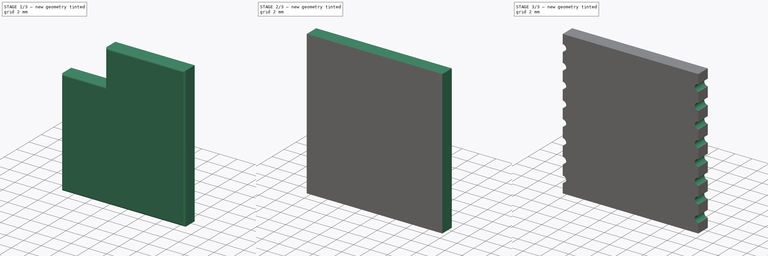
[diagram: build sequence overview — one tinted view per stage of 3, left to right]
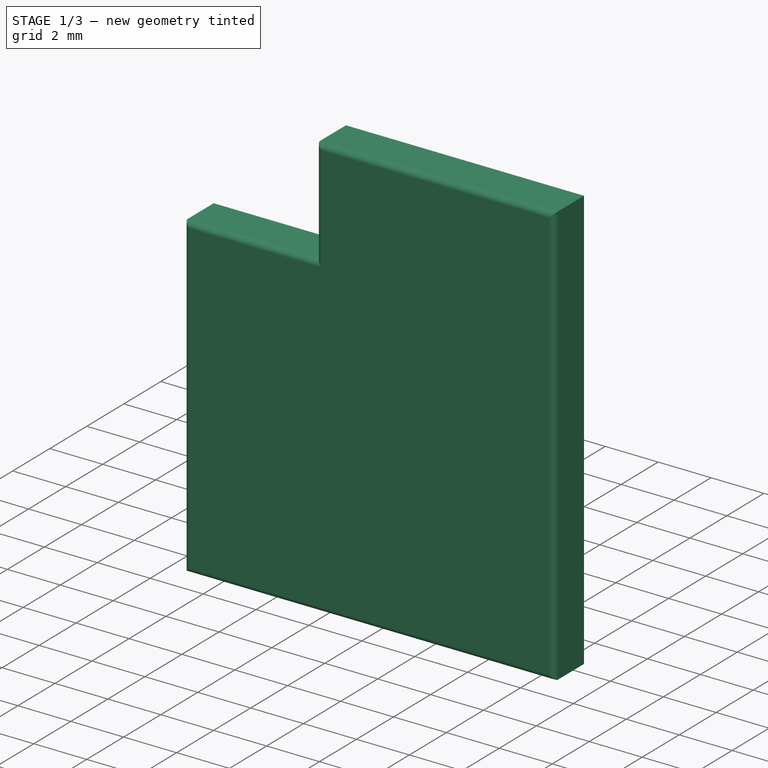
[diagram: stage 1 of 3 — iso view after this stage's code; geometry added in this stage tinted green]
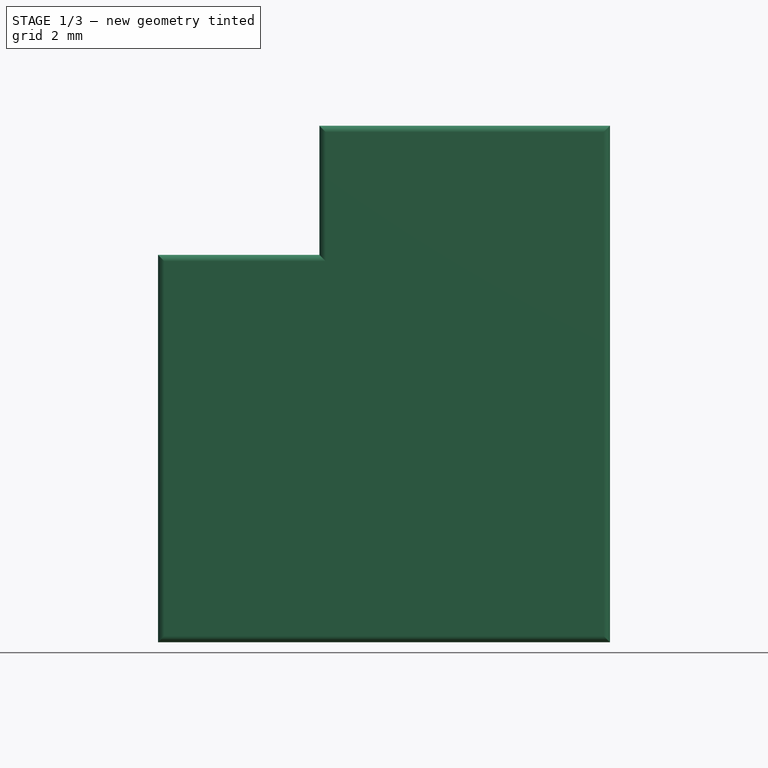
[diagram: stage 1 of 3 — front view after this stage's code; geometry added in this stage tinted green]
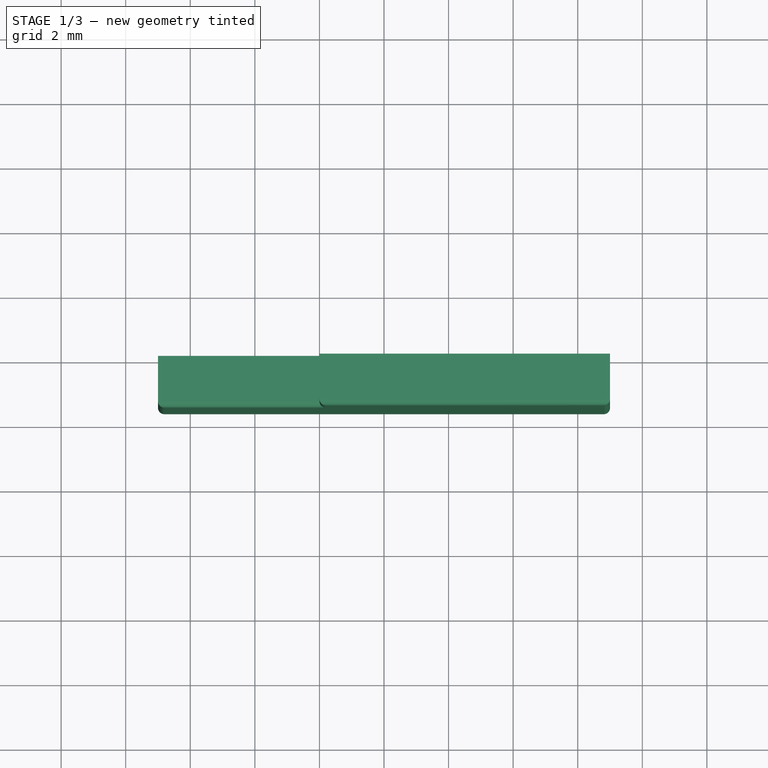
[diagram: stage 1 of 3 — top view after this stage's code; geometry added in this stage tinted green]
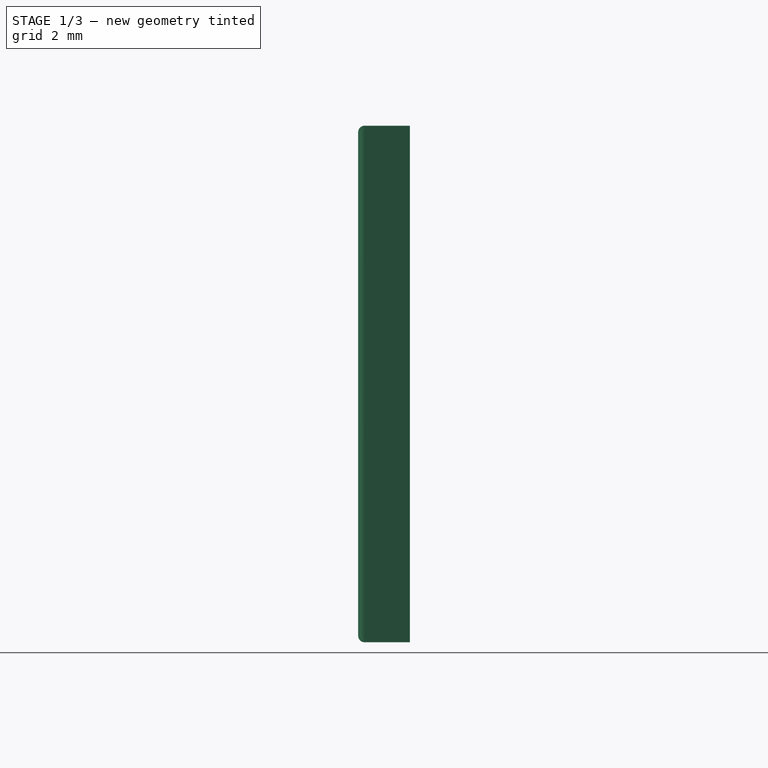
[diagram: stage 1 of 3 — right view after this stage's code; geometry added in this stage tinted green]
FCSTD DOCUMENT  (FreeCAD 2024.2R37179 (Git))
Label: ra02
License: All rights reserved
LicenseURL: https://en.wikipedia.org/wiki/All_rights_reserved
objects: App::LinkElement×15, Sketcher::SketchObject×5, PartDesign::Pad×4, PartDesign::Body×4, PartDesign::LinearPattern×1, PartDesign::Mirrored×1, PartDesign::Pocket×1, PartDesign::MultiTransform×1, PartDesign::Fillet×1, App::Part×1
note: 24 computed .brp shape members not serialized (recipe doc carries the construction recipe); baked Part::Feature solids carry a one-line shape summary decoded from their .brp

FEATURE [PartDesign::Body] Body001  label="Pin1"
  Group = -> [Sketch003,Pad001,Sketch004,Pad002]
  Origin = -> Origin003
  Placement = pos=(-8,-1.6,7) rot=(0,0,1;0rad)
  Tip = -> Pad002
FEATURE [App::LinkElement] Array_i1
  LinkPlacement = pos=(-8,-1.6,5) rot=(0,0,1;0rad)
  LinkedObject = -> Body001
  Placement = pos=(-8,-1.6,5) rot=(0,0,1;0rad)
FEATURE [App::LinkElement] Array_i2
  LinkPlacement = pos=(-8,-1.6,3) rot=(0,0,1;0rad)
  LinkedObject = -> Body001
  Placement = pos=(-8,-1.6,3) rot=(0,0,1;0rad)
FEATURE [App::LinkElement] Array_i3
  LinkPlacement = pos=(-8,-1.6,1) rot=(0,0,1;0rad)
  LinkedObject = -> Body001
  Placement = pos=(-8,-1.6,1) rot=(0,0,1;0rad)
FEATURE [App::LinkElement] Array_i4
  LinkPlacement = pos=(-8,-1.6,-1) rot=(0,0,1;0rad)
  LinkedObject = -> Body001
  Placement = pos=(-8,-1.6,-1) rot=(0,0,1;0rad)
FEATURE [App::LinkElement] Array_i5
  LinkPlacement = pos=(-8,-1.6,-3) rot=(0,0,1;0rad)
  LinkedObject = -> Body001
  Placement = pos=(-8,-1.6,-3) rot=(0,0,1;0rad)
FEATURE [App::LinkElement] Array_i6
  LinkPlacement = pos=(-8,-1.6,-5) rot=(0,0,1;0rad)
  LinkedObject = -> Body001
  Placement = pos=(-8,-1.6,-5) rot=(0,0,1;0rad)
FEATURE [App::LinkElement] Array_i7
  LinkPlacement = pos=(-8,-1.6,-7) rot=(0,0,1;0rad)
  LinkedObject = -> Body001
  Placement = pos=(-8,-1.6,-7) rot=(0,0,1;0rad)
FEATURE [App::LinkElement] Array_i8
  LinkPlacement = pos=(8,-1.6,7) rot=(0,1,0;3.14159rad)
  LinkedObject = -> Body001
  Placement = pos=(8,-1.6,7) rot=(0,1,0;3.14159rad)
FEATURE [App::LinkElement] Array_i9
  LinkPlacement = pos=(8,-1.6,5) rot=(0,1,0;3.14159rad)
  LinkedObject = -> Body001
  Placement = pos=(8,-1.6,5) rot=(0,1,0;3.14159rad)
FEATURE [App::LinkElement] Array_i10
  LinkPlacement = pos=(8,-1.6,3) rot=(0,1,0;3.14159rad)
  LinkedObject = -> Body001
  Placement = pos=(8,-1.6,3) rot=(0,1,0;3.14159rad)
FEATURE [App::LinkElement] Array_i11
  LinkPlacement = pos=(8,-1.6,1) rot=(0,1,0;3.14159rad)
  LinkedObject = -> Body001
  Placement = pos=(8,-1.6,1) rot=(0,1,0;3.14159rad)
FEATURE [App::LinkElement] Array_i12
  LinkPlacement = pos=(8,-1.6,-1) rot=(0,1,0;3.14159rad)
  LinkedObject = -> Body001
  Placement = pos=(8,-1.6,-1) rot=(0,1,0;3.14159rad)
FEATURE [App::LinkElement] Array_i13
  LinkPlacement = pos=(8,-1.6,-3) rot=(0,1,0;3.14159rad)
  LinkedObject = -> Body001
  Placement = pos=(8,-1.6,-3) rot=(0,1,0;3.14159rad)
FEATURE [App::LinkElement] Array_i14
  LinkPlacement = pos=(8,-1.6,-5) rot=(0,1,0;3.14159rad)
  LinkedObject = -> Body001
  Placement = pos=(8,-1.6,-5) rot=(0,1,0;3.14159rad)
FEATURE [App::LinkElement] Array_i15
  LinkPlacement = pos=(8,-1.6,-7) rot=(0,1,0;3.14159rad)
  LinkedObject = -> Body001
  Placement = pos=(8,-1.6,-7) rot=(0,1,0;3.14159rad)
FEATURE [PartDesign::Body] Body002  label="Body"
  Origin = -> Origin004
FEATURE [Sketcher::SketchObject] Sketch005
  AttachmentSupport = -> [XZ_Plane005]
  FullyConstrained = true
  MapMode = 5
  Placement = pos=(0,0,0) rot=(1,0,0;1.5708rad)
  sketch-geometry (6):
    g0: LineSegment StartX=-7 StartY=-8 StartZ=0 EndX=-7 EndY=4 EndZ=0
    g1: LineSegment StartX=-7 StartY=4 StartZ=0 EndX=-2 EndY=4 EndZ=0
    g2: LineSegment StartX=-2 StartY=4 StartZ=0 EndX=-2 EndY=8 EndZ=0
    g3: LineSegment StartX=-2 StartY=8 StartZ=0 EndX=7 EndY=8 EndZ=0
    g4: LineSegment StartX=7 StartY=8 StartZ=0 EndX=7 EndY=-8 EndZ=0
    g5: LineSegment StartX=7 StartY=-8 StartZ=0 EndX=-7 EndY=-8 EndZ=0
  constraints (16):
    c: Vertical(g0)
    c: Coincident(g0,g1)
    c: Horizontal(g1)
    c: Coincident(g1,g2)
    c: Vertical(g2)
    c: Coincident(g2,g3)
    c: Horizontal(g3)
    c: Coincident(g3,g4)
    c: Coincident(g4,g5)
    c: Coincident(g5,g0)
    c: Symmetric(g3,g4,g-1)
    c: Symmetric(g0,g4,g-2)
    c: DistanceX(g5,g5) = 14
    c: DistanceY(g4,g4) = 16
    c: DistanceX(g1,g1) = 5
    c: Distance(g2,g2) = 4
FEATURE [PartDesign::Pad] Pad003
  Direction = (0,-1,2e-16)
  Length = 1.6
  Length2 = 10
  Placement = pos=(0,0,0) rot=(1,0,0;1.5708rad)
  Profile = -> Sketch005
  ReferenceAxis = -> Sketch005 [N_Axis]
  Refine = true
  Suppressed = false
  Type = 0
FEATURE [PartDesign::Fillet] Fillet
  Base = -> Pad003 [Face8]
  BaseFeature = -> Pad003
  Placement = pos=(0,0,0) rot=(1,0,0;1.5708rad)
  Radius = 0.2
  Refine = true
  SupportTransform = false
  Suppressed = false
  UseAllEdges = false
FEATURE [PartDesign::Body] Body003  label="Shell"
  Group = -> [Sketch005,Pad003,Fillet]
  Origin = -> Origin005
  Placement = pos=(0,-1.6,0) rot=(0,0,1;0rad)
  Tip = -> Fillet
FEATURE [App::Part] Part  label="ra-02"
  Group = -> [Body,Body001,Body002,Body003,Array_i3,Array_i1,Array_i2,Array_i4,Array_i5,Array_i6,Array_i7,Array_i8,Array_i9,Array_i10,Array_i11,Array_i12,Array_i13,Array_i14,Array_i15]
  Origin = -> Origin001
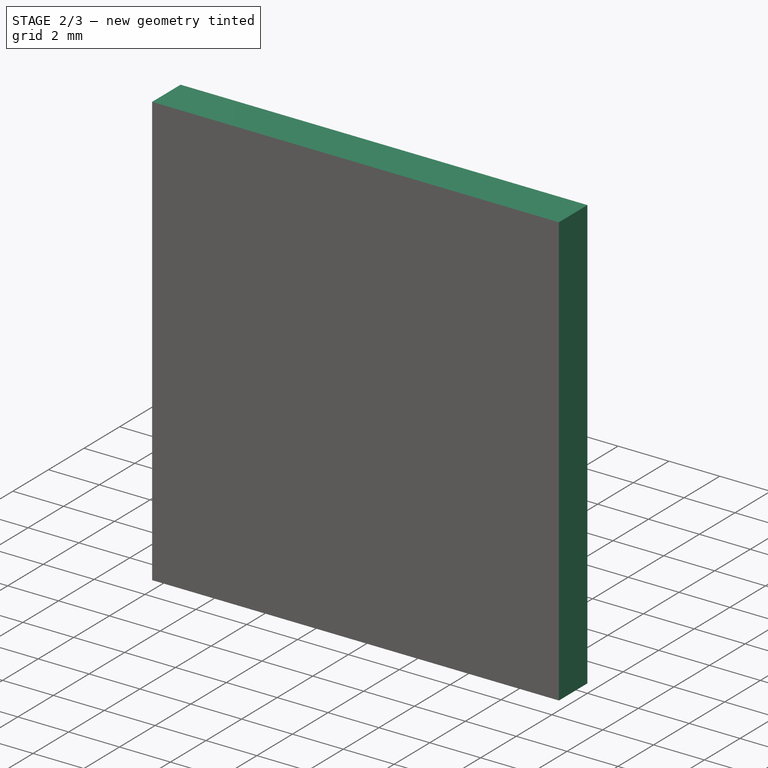
[diagram: stage 2 of 3 — iso view after this stage's code; geometry added in this stage tinted green]
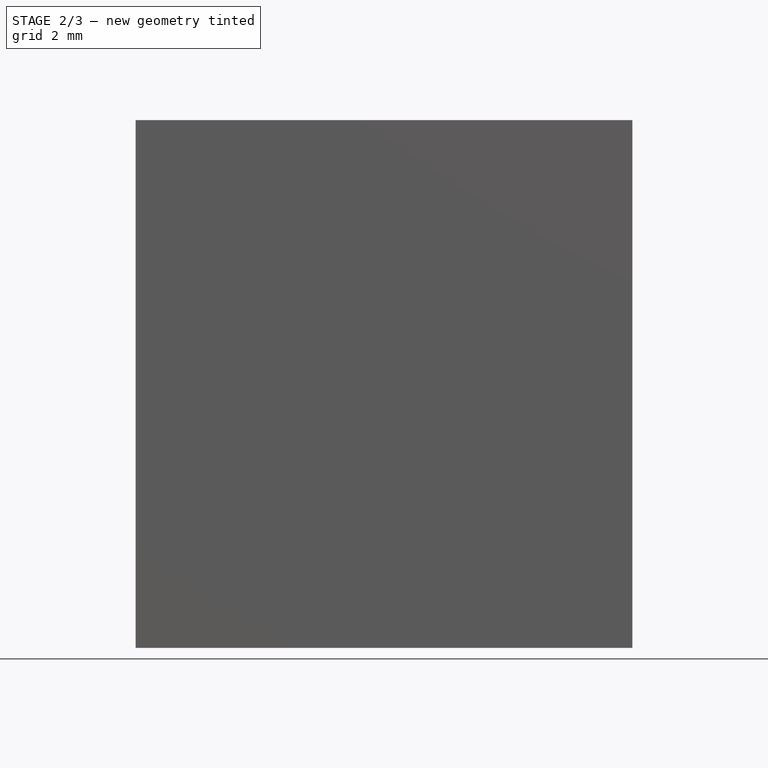
[diagram: stage 2 of 3 — front view after this stage's code; geometry added in this stage tinted green]
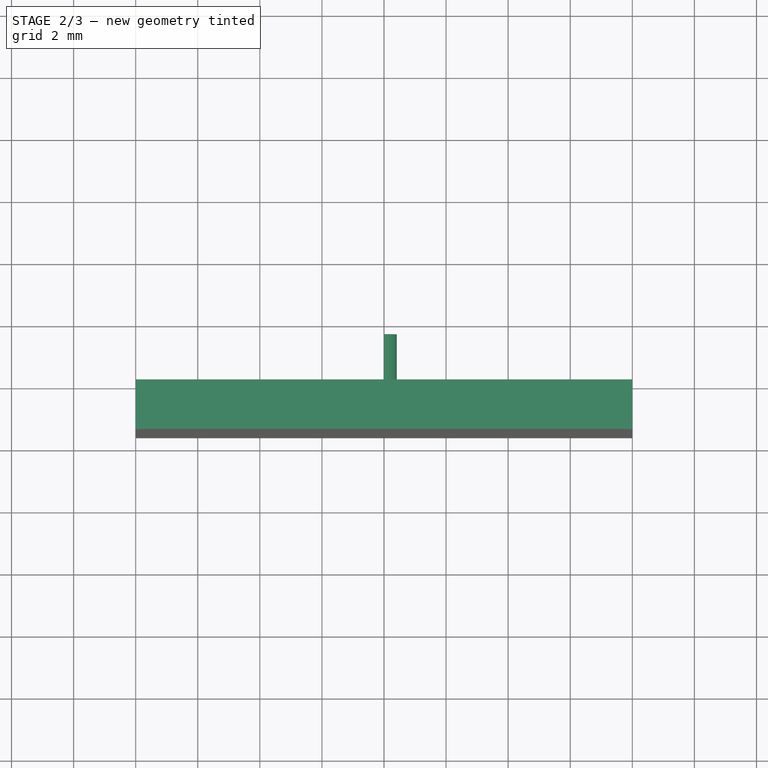
[diagram: stage 2 of 3 — top view after this stage's code; geometry added in this stage tinted green]
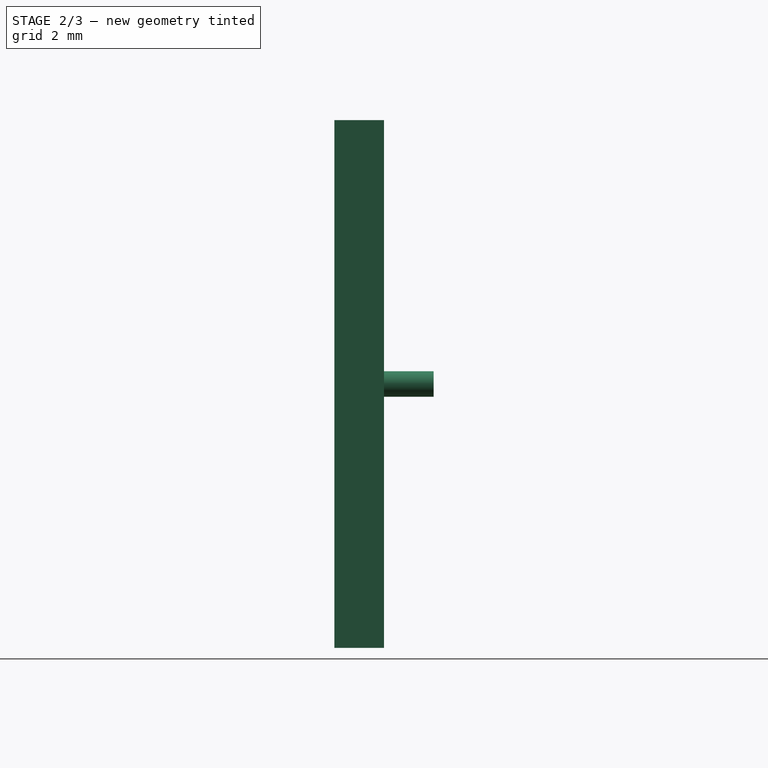
[diagram: stage 2 of 3 — right view after this stage's code; geometry added in this stage tinted green]
FEATURE [Sketcher::SketchObject] Sketch
  AttachmentSupport = -> [XZ_Plane002]
  FullyConstrained = true
  MapMode = 5
  Placement = pos=(0,0,0) rot=(1,0,0;1.5708rad)
  sketch-geometry (5):
    g0: LineSegment StartX=8 StartY=-8.5 StartZ=0 EndX=8 EndY=8.5 EndZ=0
    g1: LineSegment StartX=8 StartY=8.5 StartZ=0 EndX=-8 EndY=8.5 EndZ=0
    g2: LineSegment StartX=-8 StartY=8.5 StartZ=0 EndX=-8 EndY=-8.5 EndZ=0
    g3: LineSegment StartX=-8 StartY=-8.5 StartZ=0 EndX=8 EndY=-8.5 EndZ=0
    g4: GeomPoint X=0 Y=0 Z=0
  constraints (12):
    c: Coincident(g0,g1)
    c: Coincident(g1,g2)
    c: Coincident(g2,g3)
    c: Coincident(g3,g0)
    c: Vertical(g0)
    c: Vertical(g2)
    c: Horizontal(g1)
    c: Horizontal(g3)
    c: Symmetric(g2,g0,g4)
    c: DistanceX(g3,g3) = 16
    c: DistanceY(g2,g2) = 17
    c: Coincident(g4,g-1)
FEATURE [PartDesign::Pad] Pad
  Direction = (0,-1,2e-16)
  Length = 1.6
  Length2 = 10
  Placement = pos=(0,0,0) rot=(1,0,0;1.5708rad)
  Profile = -> Sketch
  ReferenceAxis = -> Sketch [N_Axis]
  Refine = true
  Suppressed = false
  Type = 0
FEATURE [PartDesign::Body] Body  label="Base"
  Group = -> [Sketch,Pad,Sketch002,Pocket,MultiTransform,LinearPattern,Mirrored]
  Origin = -> Origin002
  Tip = -> MultiTransform
FEATURE [Sketcher::SketchObject] Sketch003
  AttachmentSupport = -> [XZ_Plane003]
  FullyConstrained = true
  MapMode = 5
  Placement = pos=(0,0,0) rot=(1,0,0;1.5708rad)
  sketch-geometry (6):
    g0: LineSegment StartX=-1e-16 StartY=-0.5 StartZ=0 EndX=0.5 EndY=-0.5 EndZ=0
    g1: LineSegment StartX=0.5 StartY=-0.5 StartZ=0 EndX=0.5 EndY=0.5 EndZ=0
    g2: LineSegment StartX=0.5 StartY=0.5 StartZ=0 EndX=1e-16 EndY=0.5 EndZ=0
    g3: LineSegment StartX=1e-16 StartY=0.5 StartZ=0 EndX=1e-16 EndY=0.375 EndZ=0
    g4: ArcOfCircle CenterX=0 CenterY=0 CenterZ=0 NormalX=0 NormalY=0 NormalZ=1 AngleXU=0 Radius=0.375 StartAngle=4.71239 EndAngle=7.85398
    g5: LineSegment StartX=-1e-16 StartY=-0.375 StartZ=0 EndX=-1e-16 EndY=-0.5 EndZ=0
  constraints (17):
    c: Coincident(g0,g1)
    c: Coincident(g1,g2)
    c: Coincident(g2,g3)
    c: Coincident(g5,g0)
    c: Horizontal(g0)
    c: Horizontal(g2)
    c: Vertical(g1)
    c: Vertical(g3)
    c: Distance(g1,g5) = 0.5
    c: Distance(g0,g2) = 1
    c: Symmetric(g2,g0,g-1)
    c: Coincident(g4,g-1)
    c: Radius(g4) = 0.375
    c: Coincident(g3,g4)
    c: Coincident(g5,g4)
    c: Vertical(g5)
    c: PointOnObject(g2,g-2)
FEATURE [PartDesign::Pad] Pad001
  Direction = (0,-1,2e-16)
  Length = 0.035
  Length2 = 10
  Placement = pos=(0,0,0) rot=(1,0,0;1.5708rad)
  Profile = -> Sketch003
  ReferenceAxis = -> Sketch003 [N_Axis]
  Refine = true
  Suppressed = false
  Type = 0
FEATURE [Sketcher::SketchObject] Sketch004
  AttachmentSupport = -> [Pad001]
  ExternalGeometry = -> [Pad001]
  FullyConstrained = true
  MapMode = 5
  Placement = pos=(0,0,0) rot=(-1,0,0;1.5708rad)
  sketch-geometry (4):
    g0: ArcOfCircle CenterX=0 CenterY=0 CenterZ=0 NormalX=0 NormalY=0 NormalZ=1 AngleXU=0 Radius=0.375 StartAngle=4.71239 EndAngle=7.85398
    g1: ArcOfCircle CenterX=0 CenterY=0 CenterZ=0 NormalX=0 NormalY=0 NormalZ=1 AngleXU=0 Radius=0.41 StartAngle=4.71239 EndAngle=7.85398
    g2: LineSegment StartX=1e-16 StartY=0.41 StartZ=0 EndX=-2e-16 EndY=0.375 EndZ=0
    g3: LineSegment StartX=-1e-16 StartY=-0.375 StartZ=0 EndX=-1e-16 EndY=-0.41 EndZ=0
  constraints (11):
    c: PointOnObject(g0,g-2)
    c: Coincident(g1,g0)
    c: PointOnObject(g1,g-2)
    c: Coincident(g1,g2)
    c: Coincident(g0,g3)
    c: PointOnObject(g3,g-2)
    c: Distance(g0,g1) = 0.035
    c: Coincident(g3,g1)
    c: Coincident(g0,g2)
    c: Coincident(g0,g-1)
    c: Coincident(g0,g-3)
FEATURE [PartDesign::Pad] Pad002
  BaseFeature = -> Pad001
  Direction = (0,1,2e-16)
  Length = 1.6
  Length2 = 10
  Placement = pos=(0,0,0) rot=(1,0,0;1.5708rad)
  Profile = -> Sketch004
  ReferenceAxis = -> Sketch004 [N_Axis]
  Refine = true
  Suppressed = false
  Type = 0
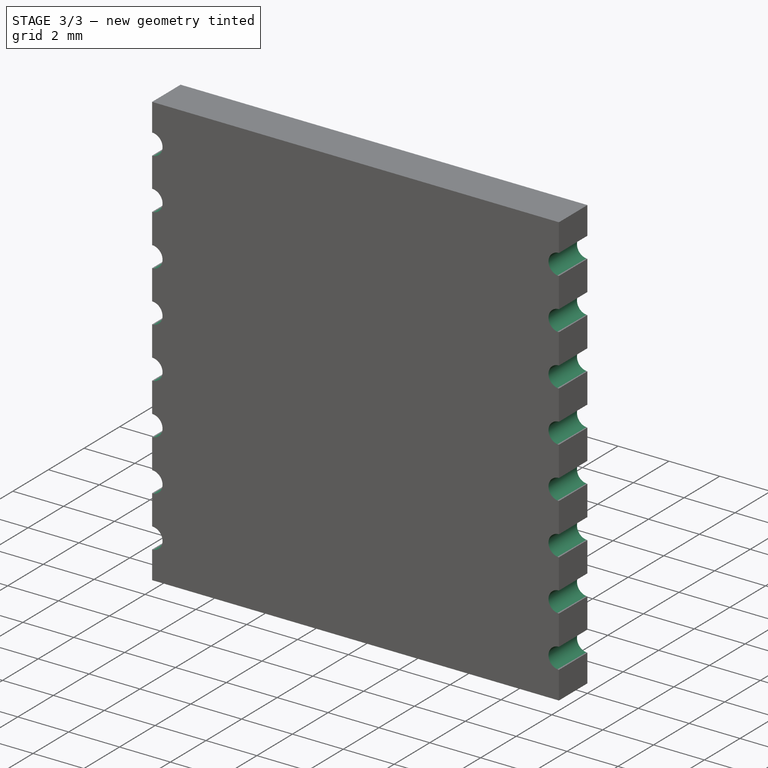
[diagram: stage 3 of 3 — iso view after this stage's code; geometry added in this stage tinted green]
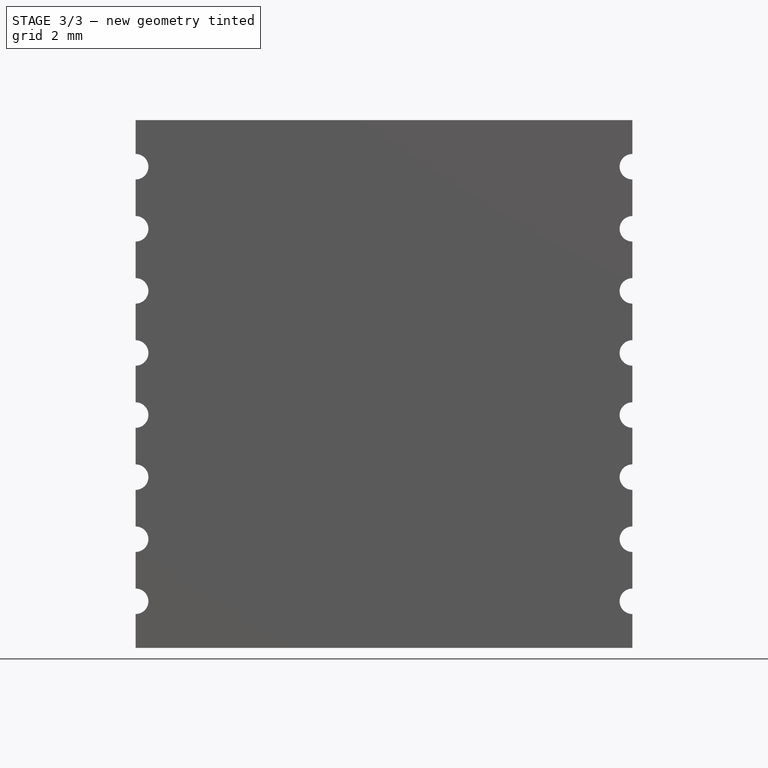
[diagram: stage 3 of 3 — front view after this stage's code; geometry added in this stage tinted green]
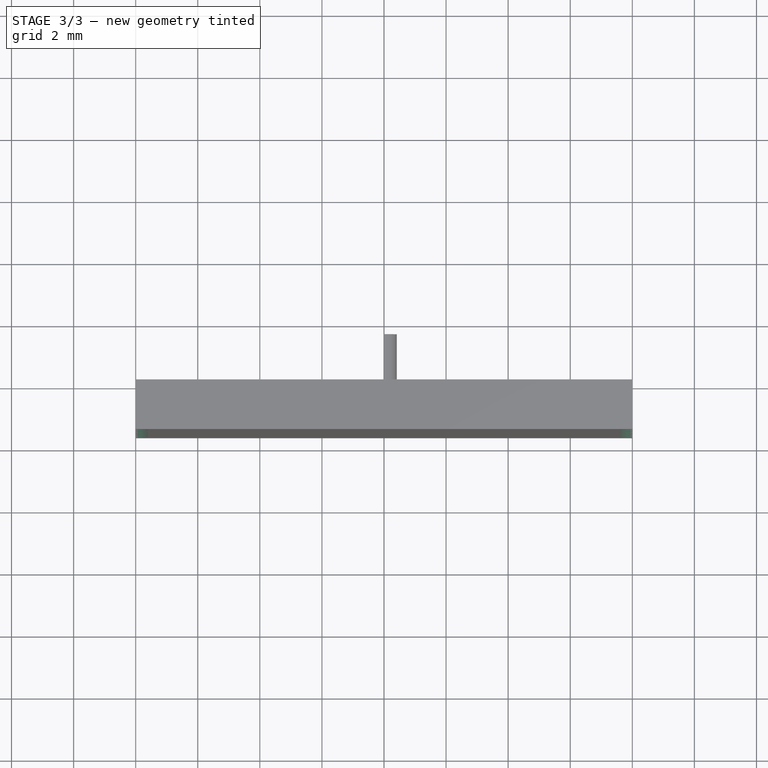
[diagram: stage 3 of 3 — top view after this stage's code; geometry added in this stage tinted green]
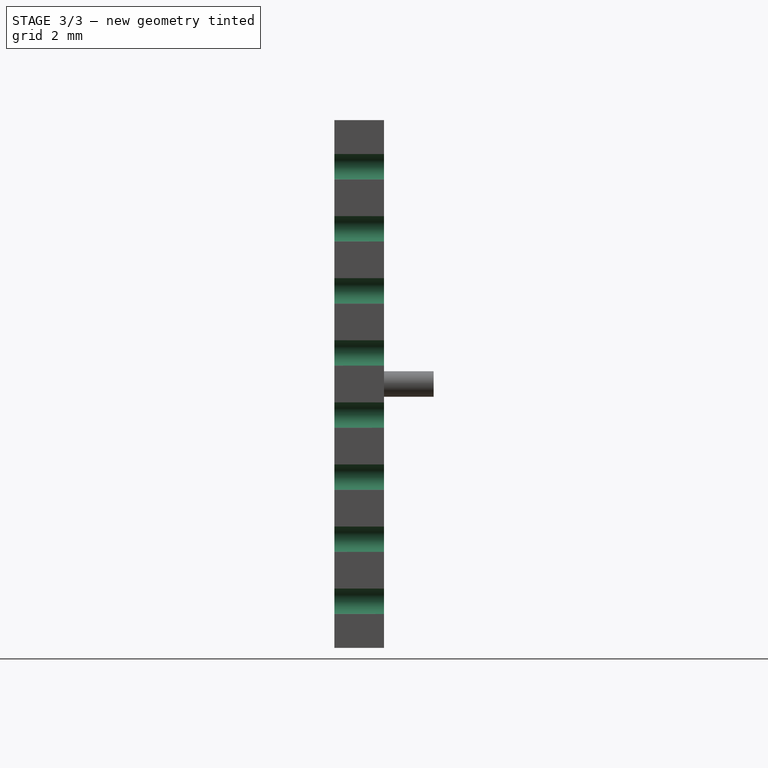
[diagram: stage 3 of 3 — right view after this stage's code; geometry added in this stage tinted green]
FEATURE [PartDesign::LinearPattern] LinearPattern
  Direction = -> Z_Axis002
  Length = 14
  Mode = 1
  Occurrences = 8
  Offset = 2
  Placement = pos=(0,0,0) rot=(1,0,0;1.5708rad)
  Refine = true
  Reversed = true
  Suppressed = false
FEATURE [PartDesign::Mirrored] Mirrored
  MirrorPlane = -> YZ_Plane002
  Placement = pos=(0,0,0) rot=(1,0,0;1.5708rad)
  Refine = true
  Suppressed = false
FEATURE [Sketcher::SketchObject] Sketch002
  FullyConstrained = false
  MapMode = 5
  Placement = pos=(0,-1.6,1e-15) rot=(1,0,0;1.5708rad)
  sketch-geometry (1):
    g0: Circle CenterX=-8 CenterY=7 CenterZ=0 NormalX=0 NormalY=0 NormalZ=1 AngleXU=0 Radius=0.41
  constraints (1):
    c: Diameter(g0) = 0.82
FEATURE [PartDesign::Pocket] Pocket
  BaseFeature = -> Pad
  Direction = (0,1,-2e-16)
  Length = 5
  Length2 = 5
  Midplane = true
  Placement = pos=(0,0,0) rot=(1,0,0;1.5708rad)
  Profile = -> Sketch002
  ReferenceAxis = -> Sketch002 [N_Axis]
  Refine = true
  Suppressed = false
  Type = 1
FEATURE [PartDesign::MultiTransform] MultiTransform
  BaseFeature = -> Pocket
  Originals = -> [Pocket]
  Placement = pos=(0,0,0) rot=(1,0,0;1.5708rad)
  Refine = true
  Suppressed = false
  Transformations = -> [LinearPattern,Mirrored]
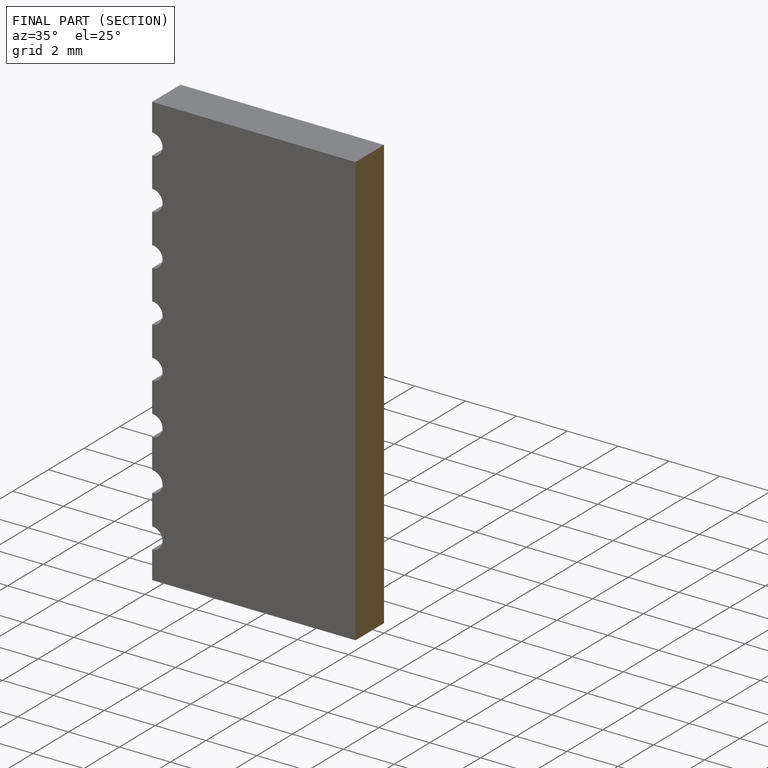
[diagram: finished part — half-section view (interior)]
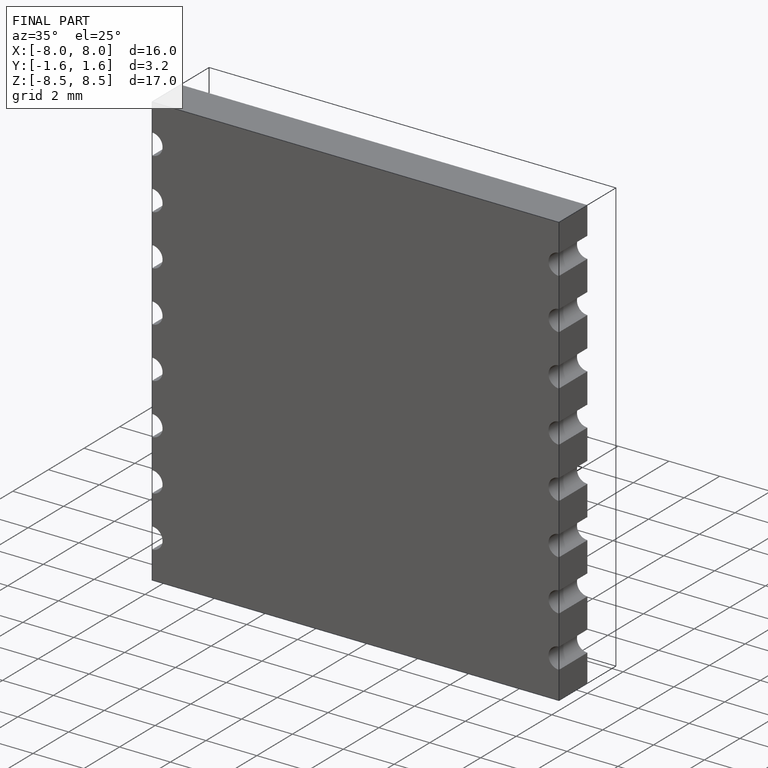
[diagram: finished part — iso view with bounding-box wireframe]
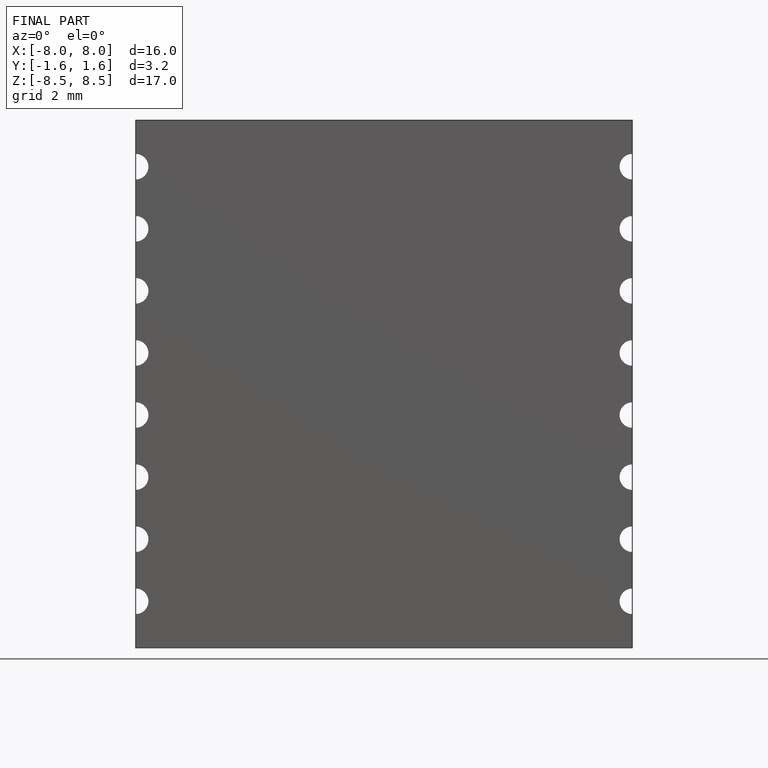
[diagram: finished part — front view with bounding-box wireframe]
